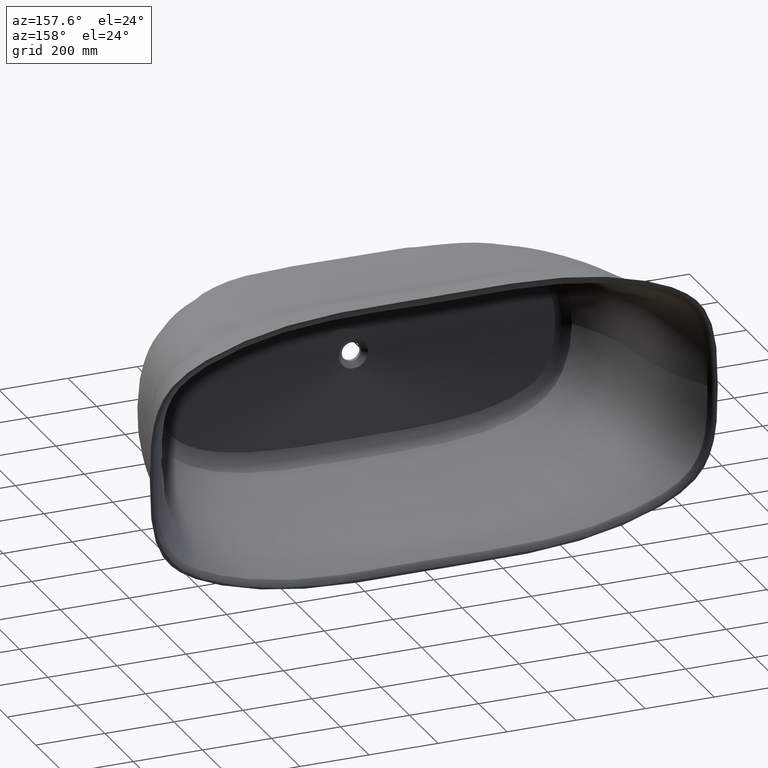
[diagram: clean part render]
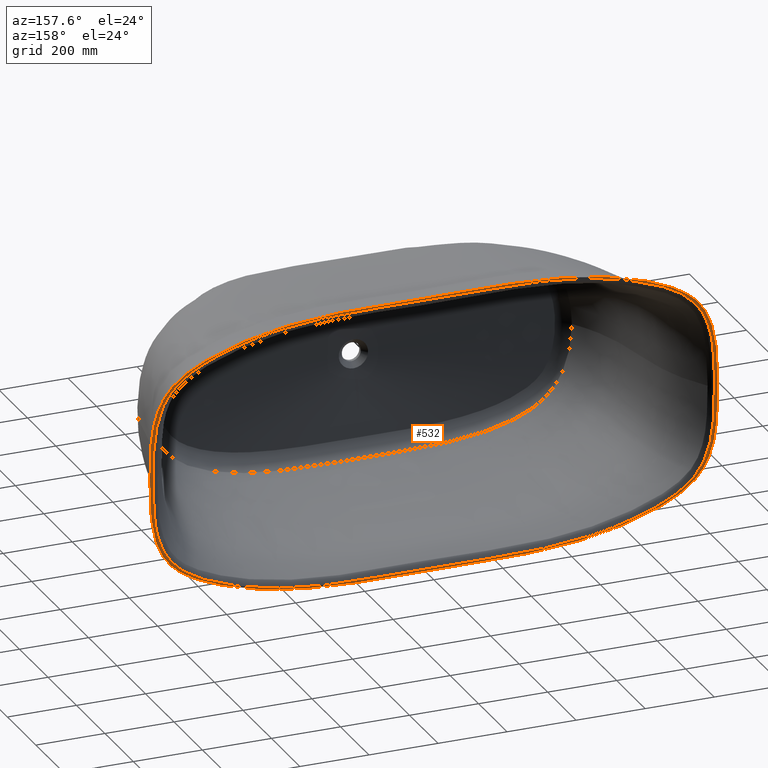
[diagram: same view with one face highlighted and labeled with its STEP entity id]
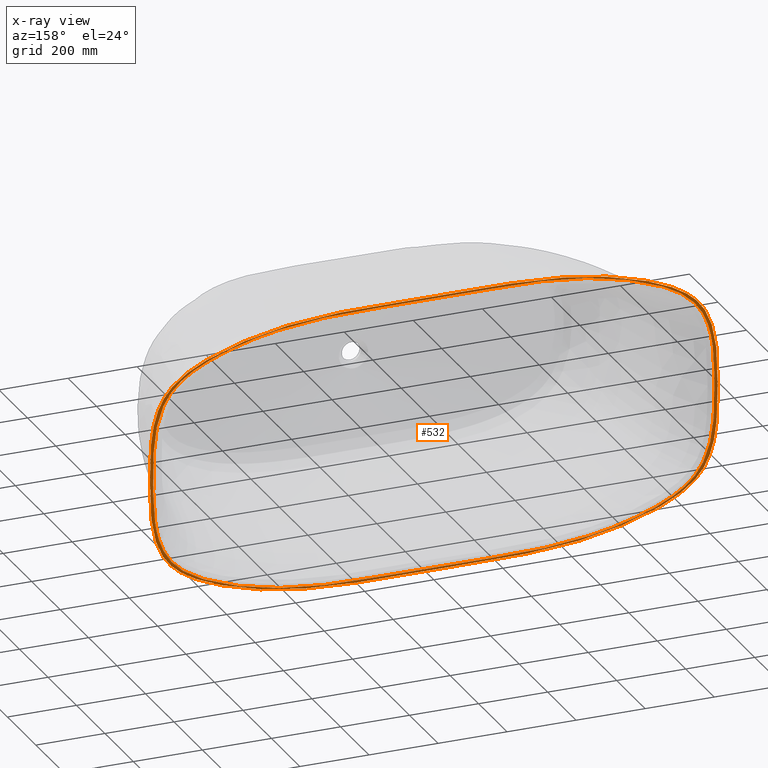
[diagram: x-ray of the same camera — body ghosted, the highlighted face saturated]
A machine part, auxiliary view. The second image highlights one B-rep face of the part: STEP entity #532.
The next image is the same camera in x-ray: the body ghosted, the highlighted face saturated — about 0% of this face is hidden behind the body in this view.
In plain terms, the highlighted planar face has unit normal (0, 1, 0).
Its self-contained STEP definition (entity closure, byte-faithful):
#33 = B_SPLINE_CURVE_WITH_KNOTS ( 'NONE', 3,
 ( #7620, #21201, #6647, #14610, #26328, #6404, #668, #9575, #6286, #14729, #11914, #3715, #26088, #23040, #25968, #14849, #29132, #17766, #20342, #12396, #12273, #34173, #34410, #25851, #9336, #23277, #17648, #31828, #17889, #15081, #902, #9096, #28888, #12152, #3597, #1018, #28650, #9216, #31709, #17413, #20222, #34530, #3477, #20578, #3835, #1260, #18347, #7109, #23636, #35002, #4418, #1603, #26899, #29475, #1377, #32180, #15429, #21045, #26556, #10151, #35112, #12513, #9808, #34891, #35226, #32406, #12736, #7223, #7340, #12625, #32065, #29709, #12853, #4080, #26782, #10035, #18236, #29361, #6997, #18124, #15315, #23755, #20935, #1491, #4307, #32291, #4536, #29591, #23981, #23868, #15655, #18461, #31949, #1718, #29248, #24098, #21279, #4194, #26667, #15200, #9921, #15541, #21160, #6882, #34772, #18010, #20817, #26443, #9694, #10756, #35582, #18939, #19062, #27137, #4891, #15774, #7816, #24579, #32645, #24457, #21754, #33008, #21515, #15893, #27379, #13332, #35465, #2319, #21877, #5137, #29949, #24705, #10388, #13211, #7696, #4771, #32884, #10510, #32525, #30192, #27019, #1837, #35707, #7942, #5012, #7579, #13455, #32762, #27259, #16011, #35344, #24336, #18699 ),
 .UNSPECIFIED., .F., .F.,
 ( 4, 2, 2, 2, 2, 1, 2, 2, 1, 1, 2, 2, 2, 2, 2, 2, 2, 2, 2, 2, 2, 2, 2, 2, 2, 2, 2, 2, 2, 2, 2, 2, 2, 2, 2, 2, 2, 2, 2, 2, 2, 2, 2, 2, 2, 2, 2, 2, 2, 2, 2, 2, 2, 2, 2, 2, 2, 2, 2, 2, 2, 2, 2, 2, 2, 2, 2, 2, 2, 2, 2, 2, 2, 2, 2, 2, 2, 4 ),
 ( 4.131862719628772496, 4.165148941386906500, 4.198435163145040505, 4.231721384903173622, 4.248364495782240624, 4.256686051221774569, 4.258766440081657834, 4.259286537296628872, 4.259806634511599022, 4.260846828941541098, 4.265007606661307626, 4.298293828419441631, 4.314936939298508634, 4.331580050177575636, 4.364866271935709641, 4.398152493693843645, 4.414795604572909760, 4.431438715451976762, 4.439760270891510707, 4.448081826331043764, 4.464724937210110767, 4.498011158968244771, 4.502171936688011300, 4.506332714407777829, 4.514654269847311774, 4.531297380726379664, 4.547940491605446667, 4.564583602484514557, 4.572905157924047614, 4.581226713363581560, 4.597869824242648562, 4.631156046000783455, 4.664442267758917460, 4.697728489517052353, 4.714371600396119355, 4.722693155835653300, 4.731014711275187246, 4.797587154791455255, 4.864159598307722376, 4.930732041823990386, 4.997304485340258395, 5.030590707098392400, 5.047233817977459402, 5.063876928856526405, 5.130449372372794414, 5.197021815889062424, 5.263594259405330433, 5.296880481163464438, 5.330166702921598443, 5.463311589954133574, 5.529884033470401583, 5.596456476986669593, 5.629742698744802709, 5.663028920502937602, 5.729601364019204723, 5.796173807535472733, 5.862746251051740742, 5.929318694568007864, 5.945961805447074866, 5.962604916326141868, 5.995891138084275873, 6.029177359842409878, 6.045820470721476880, 6.054142026161009937, 6.062463581600543883, 6.079106692479610885, 6.095749803358677887, 6.112392914237744890, 6.116553691957512306, 6.120714469677278835, 6.129036025116812780, 6.162322246874946785, 6.178965357754014676, 6.187286913193547733, 6.195608468633082566, 6.212251579512148680, 6.228894690391216571, 6.262180912149350576 ),
 .UNSPECIFIED. ) ;
#55 = CARTESIAN_POINT ( 'NONE',  ( 704.5333066432333453, -4.510281037539677620E-14, -295.5820174583107587 ) ) ;
#185 = CARTESIAN_POINT ( 'NONE',  ( -97.11899001629622319, 1.734723475976800152E-14, -393.7964773200726540 ) ) ;
#308 = CARTESIAN_POINT ( 'NONE',  ( 284.3326722549458054, 1.734723475976807094E-14, -393.4343006073427205 ) ) ;
#430 = CARTESIAN_POINT ( 'NONE',  ( -206.1036054563179505, -3.469446951953635094E-15, -394.8643273312954989 ) ) ;
#532 = ADVANCED_FACE ( 'NONE', ( #16271, #30267 ), #20277, .T. ) ;
#551 = CARTESIAN_POINT ( 'NONE',  ( -75.32229698651289596, -1.040834085586097352E-14, -393.4419337265324543 ) ) ;
#668 = CARTESIAN_POINT ( 'NONE',  ( 813.0263227763070972, -3.469446951953614978E-15, -37.60135462840131737 ) ) ;
#786 = CARTESIAN_POINT ( 'NONE',  ( 786.3215191866594296, -1.040834085586084257E-14, -204.8570801911702119 ) ) ;
#902 = CARTESIAN_POINT ( 'NONE',  ( 800.8616056122284590, 3.469446951953583423E-15, 160.3757720320687383 ) ) ;
#1018 = CARTESIAN_POINT ( 'NONE',  ( 794.0720827509887840, -2.081668171172176086E-14, 184.5157758839761470 ) ) ;
#1115 = CARTESIAN_POINT ( 'NONE',  ( -472.6615374648305874, 0.0000000000000000000, -416.4354768047816719 ) ) ;
#1260 = CARTESIAN_POINT ( 'NONE',  ( 763.8759578397223322, -8.673617379884031686E-14, 243.5912222281495758 ) ) ;
#1377 = CARTESIAN_POINT ( 'NONE',  ( 717.5189754631185224, -9.367506770274802486E-14, 286.8682579179133540 ) ) ;
#1491 = CARTESIAN_POINT ( 'NONE',  ( 257.7481288659871552, -3.469446951953613794E-15, 394.2012629864236715 ) ) ;
#1603 = CARTESIAN_POINT ( 'NONE',  ( 730.9516846075573540, -3.122502256758239517E-14, 276.9377636650827981 ) ) ;
#1708 = CARTESIAN_POINT ( 'NONE',  ( -808.3809421087109968, -3.469446951953614189E-15, 116.3137609976167255 ) ) ;
#1718 = CARTESIAN_POINT ( 'NONE',  ( -0.8167986451398893122, -2.081668171172170091E-14, 392.8187874382620066 ) ) ;
#1837 = CARTESIAN_POINT ( 'NONE',  ( -787.7410312072900069, -2.428612866367517626E-14, 201.6901008114629690 ) ) ;
#2000 = CARTESIAN_POINT ( 'NONE',  ( -813.0103416906774783, -1.040834085586084572E-14, 39.38379548845037448 ) ) ;
#2222 = CARTESIAN_POINT ( 'NONE',  ( 822.4999999999995453, 0.0000000000000000000, -0.0001044407391889712322 ) ) ;
#2240 = CARTESIAN_POINT ( 'NONE',  ( -759.0573139708067174, 2.711709361697344221E-28, -249.6450717633121315 ) ) ;
#2319 = CARTESIAN_POINT ( 'NONE',  ( -727.9228893703123049, 1.734723475976807094E-14, 279.3178047311914725 ) ) ;
#2363 = CARTESIAN_POINT ( 'NONE',  ( -628.5064128871536013, 8.088905766426362557E-30, -331.6272562558099821 ) ) ;
#2491 = CARTESIAN_POINT ( 'NONE',  ( -683.2941998657107661, -2.081668171172169775E-14, -307.5691385250500502 ) ) ;
#2615 = CARTESIAN_POINT ( 'NONE',  ( -802.5771845240814173, -3.469446951953588945E-15, -152.6358370140999625 ) ) ;
#2707 = CARTESIAN_POINT ( 'NONE',  ( 822.4999979598377422, 0.0000000000000000000, -94.08704083993697509 ) ) ;
#2742 = CARTESIAN_POINT ( 'NONE',  ( -716.1258080417372867, -3.469446951953556996E-15, -287.8150736248380213 ) ) ;
#2831 = CARTESIAN_POINT ( 'NONE',  ( -822.5000000000000000, 0.0000000000000000000, -1.387778780781445676E-14 ) ) ;
#2865 = CARTESIAN_POINT ( 'NONE',  ( 743.5693117142086521, -1.006139616066547989E-13, -265.9825832365580709 ) ) ;
#2993 = CARTESIAN_POINT ( 'NONE',  ( -293.2890553408309415, 2.081668171172073850E-14, -393.1167265608191883 ) ) ;
#3116 = CARTESIAN_POINT ( 'NONE',  ( 446.6172381381928744, -3.122502256758228157E-14, -378.9266039211541397 ) ) ;
#3240 = CARTESIAN_POINT ( 'NONE',  ( 718.1057224093806326, -4.510281037539659949E-14, -286.5074811533132220 ) ) ;
#3360 = CARTESIAN_POINT ( 'NONE',  ( 599.7040170386864020, 1.040834085586084414E-14, -341.8611812292600121 ) ) ;
#3477 = CARTESIAN_POINT ( 'NONE',  ( 768.7712168887862845, 1.249000902703300856E-13, 236.7756552920617708 ) ) ;
#3597 = CARTESIAN_POINT ( 'NONE',  ( 794.9285639737996689, 1.040834085586092145E-14, 181.8677137503069901 ) ) ;
#3715 = CARTESIAN_POINT ( 'NONE',  ( 813.2423784417784418, -1.040834085586083626E-14, -0.7206218648123553505 ) ) ;
#3835 = CARTESIAN_POINT ( 'NONE',  ( 765.5434446040119383, -7.285838599102591059E-14, 241.3564897156076086 ) ) ;
#3890 = DIRECTION ( 'NONE',  ( 0.0000000000000000000, 1.000000000000000000, 0.0000000000000000000 ) ) ;
#3958 = CARTESIAN_POINT ( 'NONE',  ( 789.0203226116954056, -1.040834085586104136E-14, -198.5609741853259038 ) ) ;
#4080 = CARTESIAN_POINT ( 'NONE',  ( 470.3828893415093262, 1.734723475976772385E-14, 374.9163901866781998 ) ) ;
#4194 = CARTESIAN_POINT ( 'NONE',  ( -187.8629086411699802, -2.081668171172195966E-14, 394.8641316068338369 ) ) ;
#4307 = CARTESIAN_POINT ( 'NONE',  ( 230.2410471269852223, -3.469446951953609850E-15, 394.7490853980604015 ) ) ;
#4418 = CARTESIAN_POINT ( 'NONE',  ( 735.2388207818021328, -9.367506770274774718E-14, 273.4343813465977746 ) ) ;
#4536 = CARTESIAN_POINT ( 'NONE',  ( 164.2243917709239724, 7.446929118297282071E-30, 394.7070977496678665 ) ) ;
#4771 = CARTESIAN_POINT ( 'NONE',  ( -760.5856261632682163, -4.163336342344504896E-14, 247.7599072502324873 ) ) ;
#4891 = CARTESIAN_POINT ( 'NONE',  ( -620.3939546470493269, -2.081668171172168829E-14, 334.6384179577488567 ) ) ;
#4918 = CARTESIAN_POINT ( 'NONE',  ( 822.5000000000050022, 0.0000000000000000000, -0.0001566611086449122634 ) ) ;
#5012 = CARTESIAN_POINT ( 'NONE',  ( -793.5388802893160118, -5.898059818321221114E-14, 186.1158990499558570 ) ) ;
#5057 = CARTESIAN_POINT ( 'NONE',  ( -550.5681683158035185, -3.816391647148935218E-14, -356.9716440214682507 ) ) ;
#5137 = CARTESIAN_POINT ( 'NONE',  ( -740.6057406746638208, 1.630640067418184532E-13, 268.7767901580057242 ) ) ;
#5182 = CARTESIAN_POINT ( 'NONE',  ( -673.5622552609206650, -1.353084311261913573E-13, -312.4449044986401418 ) ) ;
#5291 = CARTESIAN_POINT ( 'NONE',  ( -822.4999999999989768, 0.0000000000000000000, 0.0001566608466348541639 ) ) ;
#5310 = CARTESIAN_POINT ( 'NONE',  ( -760.8023511694908620, -1.214306433183768248E-13, -247.5186457551944557 ) ) ;
#5436 = CARTESIAN_POINT ( 'NONE',  ( -788.5862643943609100, 1.734723475976807094E-14, -200.2060742648859275 ) ) ;
#5561 = CARTESIAN_POINT ( 'NONE',  ( -714.9857056385100122, 2.081668171172162518E-14, -288.5915139699429233 ) ) ;
#5684 = CARTESIAN_POINT ( 'NONE',  ( 229.8416103402253725, -1.040834085586077472E-14, -394.7316221340425386 ) ) ;
#5810 = CARTESIAN_POINT ( 'NONE',  ( 635.6982353277243192, 3.469446951953280895E-15, -328.9263496269231268 ) ) ;
#5932 = CARTESIAN_POINT ( 'NONE',  ( 568.3964060136263470, -1.734723475976807094E-14, -351.6829597960085039 ) ) ;
#6051 = CARTESIAN_POINT ( 'NONE',  ( 741.5529563025248763, -4.108650548026102920E-30, -267.8422332905724375 ) ) ;
#6167 = CARTESIAN_POINT ( 'NONE',  ( 510.5046672738783400, 6.245004513516437382E-14, -366.8461471534646989 ) ) ;
#6286 = CARTESIAN_POINT ( 'NONE',  ( 813.2151149086766964, 3.469446951953612217E-15, -15.74899703883076185 ) ) ;
#6404 = CARTESIAN_POINT ( 'NONE',  ( 812.8251559209072639, 1.027162637006513644E-30, -48.52245232822493648 ) ) ;
#6525 = CARTESIAN_POINT ( 'NONE',  ( 768.8237100619614921, 4.059252933785774039E-13, -237.2996447142010084 ) ) ;
#6647 = CARTESIAN_POINT ( 'NONE',  ( 809.8760227352055381, 3.469446951953614189E-15, -103.0354615418772681 ) ) ;
#6764 = CARTESIAN_POINT ( 'NONE',  ( 796.3363702562802473, 1.040834085586099087E-14, -178.0519489377973912 ) ) ;
#6847 = EDGE_CURVE ( 'NONE', #13133, #28797, #27944, .T. ) ;
#6882 = CARTESIAN_POINT ( 'NONE',  ( -330.8584351643787045, 3.469446951953616555E-15, 391.1817471243554110 ) ) ;
#6997 = CARTESIAN_POINT ( 'NONE',  ( 307.2331581916283199, -3.469446951953779061E-15, 392.4999872410714374 ) ) ;
#7109 = CARTESIAN_POINT ( 'NONE',  ( 755.0984731500818725, -1.561251128379124870E-13, 254.3184006363744629 ) ) ;
#7223 = CARTESIAN_POINT ( 'NONE',  ( 587.5030791025826602, -1.249000902703307671E-13, 345.8297279898942520 ) ) ;
#7340 = CARTESIAN_POINT ( 'NONE',  ( 582.2319334797382453, -1.249000902703296817E-13, 347.4887848182227685 ) ) ;
#7579 = CARTESIAN_POINT ( 'NONE',  ( -794.4086407627886501, 2.081668171172243613E-14, 183.4851104050715094 ) ) ;
#7620 = CARTESIAN_POINT ( 'NONE',  ( 807.3045169104494789, 0.0000000000000000000, -124.7744286186710241 ) ) ;
#7696 = CARTESIAN_POINT ( 'NONE',  ( -759.7024465198971939, 1.353084311261926447E-13, 248.8410996885804138 ) ) ;
#7816 = CARTESIAN_POINT ( 'NONE',  ( -641.0388375261836700, 3.469446951953443400E-15, 326.8102646119650103 ) ) ;
#7827 = CARTESIAN_POINT ( 'NONE',  ( 822.5000000000050022, 0.0000000000000000000, -0.0001566611086449122634 ) ) ;
#7861 = CARTESIAN_POINT ( 'NONE',  ( -719.5290324600559870, 6.591949208711849288E-14, -285.4456856444546133 ) ) ;
#7942 = CARTESIAN_POINT ( 'NONE',  ( -791.7060570349776754, -5.898059818321178200E-14, 191.3606492049795236 ) ) ;
#7991 = CARTESIAN_POINT ( 'NONE',  ( -805.7138728481680801, -3.469446951953610639E-15, -136.4504031448961427 ) ) ;
#8120 = CARTESIAN_POINT ( 'NONE',  ( -813.1433979862467822, -1.040834085586084572E-14, 28.37615751512820950 ) ) ;
#8247 = CARTESIAN_POINT ( 'NONE',  ( -812.4933654179423002, 1.797534614761513433E-30, -59.67962164615952503 ) ) ;
#8337 = CARTESIAN_POINT ( 'NONE',  ( 472.6615374648301895, 0.0000000000000000000, -416.4354768047818425 ) ) ;
#8372 = CARTESIAN_POINT ( 'NONE',  ( -576.7480242222180777, -3.816391647148967404E-14, -349.1890746897391864 ) ) ;
#8498 = CARTESIAN_POINT ( 'NONE',  ( 746.5428944500380339, -1.006139616066567679E-13, -263.1211082948116200 ) ) ;
#8624 = CARTESIAN_POINT ( 'NONE',  ( 300.6809500751294308, 2.428612866367530563E-14, -392.7778578722300722 ) ) ;
#8746 = CARTESIAN_POINT ( 'NONE',  ( 665.8202428457283304, -4.510281037539698445E-14, -316.0271555639954499 ) ) ;
#8863 = CARTESIAN_POINT ( 'NONE',  ( -9.931472991607684264, 1.720497416985905659E-29, -392.8347613633812898 ) ) ;
#8980 = CARTESIAN_POINT ( 'NONE',  ( 0.9671373461681148642, -3.469446951953630360E-15, -392.8191532495967522 ) ) ;
#9096 = CARTESIAN_POINT ( 'NONE',  ( 799.5495308142030808, 1.734723475976810250E-14, 165.7763397749516798 ) ) ;
#9216 = CARTESIAN_POINT ( 'NONE',  ( 789.4098890201723862, -4.163336342344331978E-14, 197.5821819733708935 ) ) ;
#9255 = VERTEX_POINT ( 'NONE', #1708 ) ;
#9336 = CARTESIAN_POINT ( 'NONE',  ( 811.3536716569811915, 2.567906592516286737E-31, 83.79170504345380266 ) ) ;
#9432 = CARTESIAN_POINT ( 'NONE',  ( 1.431663625879322983E-13, 0.0000000000000000000, -387.1681131773278253 ) ) ;
#9455 = CARTESIAN_POINT ( 'NONE',  ( 750.4302080944883073, 4.510281037539642910E-14, -259.2158615566559092 ) ) ;
#9575 = CARTESIAN_POINT ( 'NONE',  ( 813.1858662771455784, -3.469446951953612611E-15, -21.21294062691074700 ) ) ;
#9694 = CARTESIAN_POINT ( 'NONE',  ( -493.7258233664360318, 1.734723475976803939E-14, 370.4265479964103633 ) ) ;
#9808 = CARTESIAN_POINT ( 'NONE',  ( 629.2270219123114430, -3.469446951953614189E-15, 331.4332756273407767 ) ) ;
#9921 = CARTESIAN_POINT ( 'NONE',  ( -286.8649540175575794, 3.816391647148974977E-14, 393.3656916926296958 ) ) ;
#10035 = CARTESIAN_POINT ( 'NONE',  ( 405.5317413874811336, -1.734723475976786900E-14, 384.5731114352756776 ) ) ;
#10151 = CARTESIAN_POINT ( 'NONE',  ( 679.5587742621705729, -3.122502256758284324E-14, 309.4673842426916508 ) ) ;
#10314 = CARTESIAN_POINT ( 'NONE',  ( -809.5826312682044090, -3.469446951953614189E-15, 105.3894730441505487 ) ) ;
#10388 = CARTESIAN_POINT ( 'NONE',  ( -757.0091463576386559, 1.734723475976807410E-14, 252.0299959011150861 ) ) ;
#10415 = CARTESIAN_POINT ( 'NONE',  ( -472.6615374648309853, 0.0000000000000000000, 416.4354768047817288 ) ) ;
#10510 = CARTESIAN_POINT ( 'NONE',  ( -764.8563505439551591, 3.920475055707625938E-13, 242.2854408068442638 ) ) ;
#10555 = CARTESIAN_POINT ( 'NONE',  ( -808.3809421087109968, -3.469446951953614189E-15, 116.3137609976167255 ) ) ;
#10677 = CARTESIAN_POINT ( 'NONE',  ( -702.2808290254098438, -3.018418848199637276E-13, -296.7744436315169310 ) ) ;
#10756 = CARTESIAN_POINT ( 'NONE',  ( -515.0927159629243306, 1.040834085586087570E-14, 365.8135030012070956 ) ) ;
#10804 = CARTESIAN_POINT ( 'NONE',  ( -597.6185515387120404, 1.734723475976812459E-14, -342.5562340926383627 ) ) ;
#10931 = CARTESIAN_POINT ( 'NONE',  ( -487.1363706956854003, 3.122502256758187137E-14, -371.7613439523948955 ) ) ;
#11059 = CARTESIAN_POINT ( 'NONE',  ( -529.4991936947490103, 3.122502256758236362E-14, -362.3872134776929670 ) ) ;
#11183 = CARTESIAN_POINT ( 'NONE',  ( -779.2820300310009998, 1.734723475976806148E-14, -220.0420720400599919 ) ) ;
#11311 = CARTESIAN_POINT ( 'NONE',  ( 749.4707428932709945, 1.040834085586090189E-13, -260.2011151758413803 ) ) ;
#11420 = CARTESIAN_POINT ( 'NONE',  ( 807.3045169104494789, 0.0000000000000000000, -124.7744286186710241 ) ) ;
#11437 = CARTESIAN_POINT ( 'NONE',  ( -140.7125147539177874, 1.734723475976819716E-14, -394.4205862636102893 ) ) ;
#11559 = CARTESIAN_POINT ( 'NONE',  ( 675.6764403295688908, 6.591949208711918708E-14, -311.2695933157824584 ) ) ;
#11676 = CARTESIAN_POINT ( 'NONE',  ( 278.8836580795224904, 1.734723475976807410E-14, -393.6204177603219705 ) ) ;
#11794 = CARTESIAN_POINT ( 'NONE',  ( -227.9010317110069934, -4.493836536903472318E-30, -394.7695701013885810 ) ) ;
#11839 = AXIS2_PLACEMENT_3D ( 'NONE', #28942, #3890, #17583 ) ;
#11914 = CARTESIAN_POINT ( 'NONE',  ( 813.2416687260587196, 3.469446951953614189E-15, -4.136422775092963633 ) ) ;
#12034 = CARTESIAN_POINT ( 'NONE',  ( 807.3045169104494789, 0.0000000000000000000, -124.7744286186710241 ) ) ;
#12152 = CARTESIAN_POINT ( 'NONE',  ( 796.5620466892330569, 1.040834085586082994E-14, 176.5351957502505797 ) ) ;
#12273 = CARTESIAN_POINT ( 'NONE',  ( 812.8615670825091684, 3.469446951953614189E-15, 45.03548707020670605 ) ) ;
#12312 = ORIENTED_EDGE ( 'NONE', *, *, #6847, .T. ) ;
#12396 = CARTESIAN_POINT ( 'NONE',  ( 813.1554658949149825, 3.469446951953620500E-15, 28.39441799255095233 ) ) ;
#12513 = CARTESIAN_POINT ( 'NONE',  ( 649.6447835888470763, -3.469446951953549897E-15, 323.2680275442340871 ) ) ;
#12625 = CARTESIAN_POINT ( 'NONE',  ( 579.5943096886369403, -3.122502256758297577E-14, 348.3051502445703136 ) ) ;
#12736 = CARTESIAN_POINT ( 'NONE',  ( 590.1376121404698551, 1.734723475976874621E-14, 344.9867193703314570 ) ) ;
#12853 = CARTESIAN_POINT ( 'NONE',  ( 491.8631946729106517, -4.163336342344321880E-14, 370.8198735167742370 ) ) ;
#12892 = CARTESIAN_POINT ( 'NONE',  ( -811.9912012528812966, 3.469446951953620500E-15, 72.40863483802512235 ) ) ;
#13113 = B_SPLINE_CURVE_WITH_KNOTS ( 'NONE', 3,
 ( #5291, #24362, #35611, #10415, #29975, #32788, #18844, #33036, #2222, #4918 ),
 .UNSPECIFIED., .F., .F.,
 ( 4, 1, 1, 1, 1, 1, 1, 4 ),
 ( 3.365254548353221972E-08, 0.06063285709478627439, 0.1021528900831438769, 0.2500000000000001110, 0.3978471099168562342, 0.4393671429052138366, 0.5000000000000000000, 0.5000000336526018163 ),
 .UNSPECIFIED. ) ;
#13133 = VERTEX_POINT ( 'NONE', #18160 ) ;
#13135 = CARTESIAN_POINT ( 'NONE',  ( -810.5467036317758129, -3.469446951953613794E-15, 94.42233073954652411 ) ) ;
#13211 = CARTESIAN_POINT ( 'NONE',  ( -757.9144566051917309, 1.353084311261909281E-13, 250.9757785211836278 ) ) ;
#13332 = CARTESIAN_POINT ( 'NONE',  ( -716.7487420142647352, 4.510281037539697814E-14, 287.4002600812743253 ) ) ;
#13455 = CARTESIAN_POINT ( 'NONE',  ( -796.8893114524036037, 2.081668171172168513E-14, 175.5695494374367343 ) ) ;
#13500 = CARTESIAN_POINT ( 'NONE',  ( -643.7441511933641323, -3.143117669239991333E-28, -325.7120859150111869 ) ) ;
#13599 = CARTESIAN_POINT ( 'NONE',  ( -822.4999999999989768, 0.0000000000000000000, 0.0001566608466348541639 ) ) ;
#13627 = CARTESIAN_POINT ( 'NONE',  ( -809.2045365009602165, -1.040834085586083783E-14, -109.1732703995585894 ) ) ;
#13755 = CARTESIAN_POINT ( 'NONE',  ( -810.6619075901662654, 3.469446951953605511E-15, -92.69560796644618961 ) ) ;
#13881 = CARTESIAN_POINT ( 'NONE',  ( -711.5524625714729154, 2.081668171172159678E-14, -290.8925606775115966 ) ) ;
#14005 = CARTESIAN_POINT ( 'NONE',  ( -613.1325676222884340, -3.469446951953572379E-15, -337.2449331524301783 ) ) ;
#14129 = CARTESIAN_POINT ( 'NONE',  ( -162.5093470182788451, -3.469446951953586184E-15, -394.6898105918959345 ) ) ;
#14251 = CARTESIAN_POINT ( 'NONE',  ( 55.46061212829613396, -3.469446951953528992E-15, -393.0003730324089588 ) ) ;
#14376 = CARTESIAN_POINT ( 'NONE',  ( -31.72854666127444290, -4.968899256518961442E-29, -392.9560589068345848 ) ) ;
#14491 = CARTESIAN_POINT ( 'NONE',  ( 186.2472704569239568, -1.040834085586079523E-14, -394.8562313715712548 ) ) ;
#14610 = CARTESIAN_POINT ( 'NONE',  ( 811.5200651321634950, 3.469446951953613794E-15, -81.25235758284027554 ) ) ;
#14729 = CARTESIAN_POINT ( 'NONE',  ( 813.2370800989058353, 3.469446951953614189E-15, -7.552039092588844760 ) ) ;
#14849 = CARTESIAN_POINT ( 'NONE',  ( 813.2422674150845978, 0.0000000000000000000, 1.175592516848960489 ) ) ;
#14962 = CARTESIAN_POINT ( 'NONE',  ( 785.7692030495429663, -1.734723475976807410E-14, -206.1128633646416688 ) ) ;
#15081 = CARTESIAN_POINT ( 'NONE',  ( 803.2147740914377891, 3.469446951953618133E-15, 149.5410564601082513 ) ) ;
#15200 = CARTESIAN_POINT ( 'NONE',  ( -253.8685333215150308, 3.816391647148948471E-14, 394.3971294542249098 ) ) ;
#15315 = CARTESIAN_POINT ( 'NONE',  ( 279.7550694812009624, -3.816391647148975608E-14, 393.5920703954669762 ) ) ;
#15429 = CARTESIAN_POINT ( 'NONE',  ( 708.2759050280606061, 1.040834085586084257E-13, 293.0589464209372181 ) ) ;
#15541 = CARTESIAN_POINT ( 'NONE',  ( -297.8630158137766557, 3.816391647148975608E-14, 392.9288600672626899 ) ) ;
#15655 = CARTESIAN_POINT ( 'NONE',  ( 43.19425021502685524, 1.040834085586084099E-14, 393.0645765334273847 ) ) ;
#15774 = CARTESIAN_POINT ( 'NONE',  ( -625.5772619077346235, 3.469446951953614189E-15, 332.7286016661581698 ) ) ;
#15893 = CARTESIAN_POINT ( 'NONE',  ( -709.8369248559953348, -1.249000902703300856E-13, 292.0092997470196678 ) ) ;
#15936 = CARTESIAN_POINT ( 'NONE',  ( -812.4334954969306182, -1.040834085586084572E-14, 61.40003647240587270 ) ) ;
#16011 = CARTESIAN_POINT ( 'NONE',  ( -802.2385195461248486, 1.979855982830217690E-28, 154.2330784500955190 ) ) ;
#16177 = CARTESIAN_POINT ( 'NONE',  ( -401.5660087359970021, 1.040834085586074001E-14, -385.0364972338787197 ) ) ;
#16271 = FACE_BOUND ( 'NONE', #22902, .T. ) ;
#16300 = CARTESIAN_POINT ( 'NONE',  ( -749.9167927118909347, -1.006139616066550639E-13, -259.8494340088336685 ) ) ;
#16428 = CARTESIAN_POINT ( 'NONE',  ( -709.2463928917633211, -3.018418848199644849E-13, -292.3889076658183512 ) ) ;
#16554 = CARTESIAN_POINT ( 'NONE',  ( -753.6837669279998408, 2.424103823335435089E-28, -255.8817704530006552 ) ) ;
#16683 = CARTESIAN_POINT ( 'NONE',  ( -797.3315153118727494, 2.619264724366669907E-29, -174.0323516921683336 ) ) ;
#16807 = CARTESIAN_POINT ( 'NONE',  ( 660.8489667031553836, 7.285838599102589797E-14, -318.2987768953820478 ) ) ;
#16935 = CARTESIAN_POINT ( 'NONE',  ( 327.8955614083430419, -4.510281037539697814E-14, -391.3656827471585302 ) ) ;
#17057 = CARTESIAN_POINT ( 'NONE',  ( -271.4970780929439798, 5.898059818321161791E-14, -393.8484821246660772 ) ) ;
#17177 = CARTESIAN_POINT ( 'NONE',  ( 683.0070644201540517, -3.143117669239249205E-28, -307.5438171091871595 ) ) ;
#17295 = CARTESIAN_POINT ( 'NONE',  ( 573.6307367627757685, -3.122502256758252770E-14, -350.1306523507122392 ) ) ;
#17413 = CARTESIAN_POINT ( 'NONE',  ( 777.8754087550155418, -1.734723475976812459E-14, 222.7029936511399342 ) ) ;
#17530 = CARTESIAN_POINT ( 'NONE',  ( 784.0594009112444382, -1.734723475976806779E-14, -209.8672891084619323 ) ) ;
#17583 = DIRECTION ( 'NONE',  ( 0.0000000000000000000, -0.0000000000000000000, 1.000000000000000000 ) ) ;
#17648 = CARTESIAN_POINT ( 'NONE',  ( 808.4359010652673305, -3.469446951953614978E-15, 116.8090971645489731 ) ) ;
#17766 = CARTESIAN_POINT ( 'NONE',  ( 813.2401425794039369, 0.0000000000000000000, 4.816417300958867109 ) ) ;
#17889 = CARTESIAN_POINT ( 'NONE',  ( 804.2558206831490679, -4.237045877651895755E-30, 144.1069027956849595 ) ) ;
#18010 = CARTESIAN_POINT ( 'NONE',  ( -385.6270474903009813, 1.040834085586082679E-14, 386.8008420193699521 ) ) ;
#18124 = CARTESIAN_POINT ( 'NONE',  ( 296.2510016472943448, -3.816391647148959830E-14, 392.9950882544042088 ) ) ;
#18160 = CARTESIAN_POINT ( 'NONE',  ( 822.5000000000050022, 0.0000000000000000000, -0.0001566611086449122634 ) ) ;
#18236 = CARTESIAN_POINT ( 'NONE',  ( 361.9868080567053426, -1.734723475976803623E-14, 389.0160188057135429 ) ) ;
#18347 = CARTESIAN_POINT ( 'NONE',  ( 758.7277580792160734, -8.673617379884053143E-14, 250.1475496723701326 ) ) ;
#18461 = CARTESIAN_POINT ( 'NONE',  ( 32.19149893887105662, -1.734723475976807094E-14, 392.9595826210837117 ) ) ;
#18699 = CARTESIAN_POINT ( 'NONE',  ( -808.3809421087109968, -3.469446951953614189E-15, 116.3137609976167255 ) ) ;
#18702 = VERTEX_POINT ( 'NONE', #11420 ) ;
#18844 = CARTESIAN_POINT ( 'NONE',  ( 819.4035536108184488, 0.0000000000000000000, 252.6025157858578609 ) ) ;
#18939 = CARTESIAN_POINT ( 'NONE',  ( -578.6114782522256519, -1.075528555105625700E-13, 348.8947850646267170 ) ) ;
#18984 = CARTESIAN_POINT ( 'NONE',  ( -607.9757666085843084, 1.734723475976801730E-14, -339.0471422850089880 ) ) ;
#19062 = CARTESIAN_POINT ( 'NONE',  ( -604.7579295074563106, -1.075528555105624311E-13, 340.1534211365978990 ) ) ;
#19106 = CARTESIAN_POINT ( 'NONE',  ( -763.3479521872010309, -1.214306433183760927E-13, -244.2548980884502612 ) ) ;
#19233 = CARTESIAN_POINT ( 'NONE',  ( -718.3970025827916288, -3.469446951953451683E-15, -286.2424989019810369 ) ) ;
#19363 = CARTESIAN_POINT ( 'NONE',  ( -813.1595692748925330, -3.469446951953616555E-15, -26.66001642676148720 ) ) ;
#19485 = CARTESIAN_POINT ( 'NONE',  ( -737.9749519563791864, 1.422473250300987623E-13, -271.0923215059447102 ) ) ;
#19609 = CARTESIAN_POINT ( 'NONE',  ( 731.1903524196709441, -1.283695372222825133E-13, -276.7436368330223218 ) ) ;
#19735 = CARTESIAN_POINT ( 'NONE',  ( 317.0200590765143147, 2.428612866367529932E-14, -391.9935144964593974 ) ) ;
#19861 = CARTESIAN_POINT ( 'NONE',  ( 425.1740269495022062, 3.469446951953616555E-15, -382.0560657874946742 ) ) ;
#19983 = CARTESIAN_POINT ( 'NONE',  ( 695.1197865235614017, -2.177584790453680117E-28, -301.1155700758241096 ) ) ;
#20105 = CARTESIAN_POINT ( 'NONE',  ( 584.0826073590883425, -3.122502256758233206E-14, -346.9238170841389888 ) ) ;
#20222 = CARTESIAN_POINT ( 'NONE',  ( 771.1039177973641472, -1.734723475976773016E-14, 233.2834312385097348 ) ) ;
#20225 = ORIENTED_EDGE ( 'NONE', *, *, #34852, .T. ) ;
#20277 = PLANE ( 'NONE',  #11839 ) ;
#20342 = CARTESIAN_POINT ( 'NONE',  ( 813.2219812325399744, -5.135813185032574349E-31, 17.29914174695210960 ) ) ;
#20439 = CARTESIAN_POINT ( 'NONE',  ( -822.4999999999994316, 0.0000000000000000000, 0.0001044405642410871853 ) ) ;
#20578 = CARTESIAN_POINT ( 'NONE',  ( 767.9725331572960840, -7.285838599102589797E-14, 237.9311946857487783 ) ) ;
#20697 = CARTESIAN_POINT ( 'NONE',  ( 803.9651888657649579, -0.0000000000000000000, -146.3723889368948790 ) ) ;
#20817 = CARTESIAN_POINT ( 'NONE',  ( -429.1054878132309227, 1.040834085586080943E-14, 381.5155771864166354 ) ) ;
#20935 = CARTESIAN_POINT ( 'NONE',  ( 263.2495503213010579, 2.081668171172168513E-14, 394.0713659903760231 ) ) ;
#21045 = CARTESIAN_POINT ( 'NONE',  ( 703.5769305458333065, 5.898059818321142859E-14, 295.9837134240633532 ) ) ;
#21160 = CARTESIAN_POINT ( 'NONE',  ( -319.8573926263273393, 3.816391647148975608E-14, 391.8371277683611424 ) ) ;
#21201 = CARTESIAN_POINT ( 'NONE',  ( 808.7861244745682825, 2.567906592516284547E-31, -113.9142655703781060 ) ) ;
#21279 = CARTESIAN_POINT ( 'NONE',  ( -165.8584797688416188, 1.734723475976807726E-14, 394.7009587365150765 ) ) ;
#21515 = CARTESIAN_POINT ( 'NONE',  ( -707.4951986834109903, -1.040834085586083626E-14, 293.5054848181862894 ) ) ;
#21754 = CARTESIAN_POINT ( 'NONE',  ( -695.6545438057555657, -3.816391647148962355E-14, 300.6695343612889815 ) ) ;
#21799 = CARTESIAN_POINT ( 'NONE',  ( -592.4164343980563672, -3.469446951953664281E-15, -344.2635817458668726 ) ) ;
#21877 = CARTESIAN_POINT ( 'NONE',  ( -736.4649270503537082, 1.734723475976945934E-14, 272.3911253298985002 ) ) ;
#21924 = CARTESIAN_POINT ( 'NONE',  ( -773.8501111953331701, 1.561251128379126637E-13, -229.5874135113679131 ) ) ;
#22052 = CARTESIAN_POINT ( 'NONE',  ( -811.2403941123151299, -3.469446951953622472E-15, -84.44198599920218840 ) ) ;
#22179 = CARTESIAN_POINT ( 'NONE',  ( -653.7874699022067944, -1.353084311261911301E-13, -321.5169005344938000 ) ) ;
#22270 = CARTESIAN_POINT ( 'NONE',  ( 819.4035069357348675, 0.0000000000000000000, -252.6025378394793961 ) ) ;
#22304 = CARTESIAN_POINT ( 'NONE',  ( -766.6480469450976898, 1.561251128379126385E-13, -239.8044731291207086 ) ) ;
#22394 = CARTESIAN_POINT ( 'NONE',  ( -822.4999999999989768, 0.0000000000000000000, 0.0001566608466348541639 ) ) ;
#22428 = CARTESIAN_POINT ( 'NONE',  ( 722.5382167688824211, -1.283695372222841036E-13, -283.3531298830282594 ) ) ;
#22551 = CARTESIAN_POINT ( 'NONE',  ( 382.0971398804911701, 3.469446951953727390E-15, -387.1554703707588487 ) ) ;
#22675 = CARTESIAN_POINT ( 'NONE',  ( -260.5979734661220846, 5.898059818321117615E-14, -394.1357612613339256 ) ) ;
#22794 = CARTESIAN_POINT ( 'NONE',  ( 735.4101757544879092, -1.214106236941593665E-27, -273.2887523057178782 ) ) ;
#22902 = EDGE_LOOP ( 'NONE', ( #20225, #23706 ) ) ;
#22918 = CARTESIAN_POINT ( 'NONE',  ( 620.3474109266654750, 3.469446951953614189E-15, -334.6566555602890958 ) ) ;
#23040 = CARTESIAN_POINT ( 'NONE',  ( 813.2423773347042015, -1.040834085586084414E-14, 0.3087257088384604553 ) ) ;
#23158 = CARTESIAN_POINT ( 'NONE',  ( 782.2866886777693480, -1.734723475976806463E-14, -213.5952669083117428 ) ) ;
#23277 = CARTESIAN_POINT ( 'NONE',  ( 810.5943589736751846, -3.469446951953620500E-15, 94.82393185026008098 ) ) ;
#23400 = CARTESIAN_POINT ( 'NONE',  ( 774.6834457031523016, -6.245004513516949826E-14, -228.1493185522159592 ) ) ;
#23519 = CARTESIAN_POINT ( 'NONE',  ( 790.9788730872061251, 1.040834085586103978E-14, -193.4691890909132326 ) ) ;
#23636 = CARTESIAN_POINT ( 'NONE',  ( 747.4867894378826350, -1.561251128379125123E-13, 262.3018263924544158 ) ) ;
#23706 = ORIENTED_EDGE ( 'NONE', *, *, #34767, .T. ) ;
#23755 = CARTESIAN_POINT ( 'NONE',  ( 274.2524044801486411, 2.081668171172168513E-14, 393.7667939317268520 ) ) ;
#23868 = CARTESIAN_POINT ( 'NONE',  ( 76.20248526435214842, 1.040834085586081101E-14, 393.4543162068389961 ) ) ;
#23981 = CARTESIAN_POINT ( 'NONE',  ( 98.20795027018159828, 3.469446951953648899E-15, 393.8137729176838207 ) ) ;
#24020 = CARTESIAN_POINT ( 'NONE',  ( -809.0262704359644204, 3.469446951953613400E-15, 110.8596396950727723 ) ) ;
#24098 = CARTESIAN_POINT ( 'NONE',  ( -99.84282581190595351, 1.734723475976833600E-14, 393.9158999866002091 ) ) ;
#24336 = CARTESIAN_POINT ( 'NONE',  ( -807.0891746237832649, -3.469446951953648110E-15, 127.2313920079683243 ) ) ;
#24362 = CARTESIAN_POINT ( 'NONE',  ( -822.4999979598409254, 0.0000000000000000000, 94.08704083976222421 ) ) ;
#24457 = CARTESIAN_POINT ( 'NONE',  ( -681.1675603013882210, -3.816391647148975608E-14, 308.6715943819426684 ) ) ;
#24579 = CARTESIAN_POINT ( 'NONE',  ( -651.2296163232931576, 3.816391647148992647E-14, 322.6146871266283256 ) ) ;
#24625 = CARTESIAN_POINT ( 'NONE',  ( -813.0380400987899066, 2.311115933264683024E-30, -37.66686374057022846 ) ) ;
#24705 = CARTESIAN_POINT ( 'NONE',  ( -752.4275974211142284, 1.734723475976945303E-14, 257.2373034552512649 ) ) ;
#24751 = CARTESIAN_POINT ( 'NONE',  ( -810.4464024461134386, -3.469446951953606300E-15, -95.44734861964043660 ) ) ;
#24877 = CARTESIAN_POINT ( 'NONE',  ( -697.5741997545984532, -2.081668171172233200E-14, -299.5606079092959249 ) ) ;
#25003 = CARTESIAN_POINT ( 'NONE',  ( -813.2310577305757988, -1.040834085586082363E-14, 11.86504815678695479 ) ) ;
#25104 = B_SPLINE_CURVE_WITH_KNOTS ( 'NONE', 3,
 ( #10555, #24020, #10314, #13135, #29630, #12892, #15936, #2000, #8120, #25003, #33054, #33441, #27423, #19363, #24625, #8247, #36127, #22052, #30747, #13755, #24751, #30369, #13627, #27678, #7991, #2615, #33312, #35751, #16683, #30239, #5436, #11183, #21924, #22304, #27803, #30496, #19106, #5310, #2240, #16554, #16300, #36250, #19485, #30623, #33183, #7861, #19233, #2742, #5561, #13881, #16428, #10677, #24877, #2491, #5182, #22179, #13500, #2363, #27548, #14005, #18984, #10804, #21799, #25126, #8372, #5057, #11059, #10931, #35871, #27926, #16177, #35998, #28533, #31118, #2993, #33816, #17057, #22675, #28177, #11794, #430, #14129, #11437, #185, #551, #34055, #14376, #8863, #8980, #14251, #33693, #31358, #14491, #5684, #28415, #11676, #308, #30996, #8624, #19735, #16935, #25376, #22551, #19861, #3116, #33935, #6167, #31239, #25616, #5932, #17295, #20105, #33565, #3360, #30873, #25736, #22918, #5810, #25499, #16807, #8746, #28298, #11559, #25250, #17177, #19983, #55, #3240, #22428, #19609, #22794, #6051, #2865, #8498, #28052, #11311, #9455, #26210, #34293, #6525, #23400, #34653, #23158, #17530, #29010, #14962, #786, #3958, #23519, #6764, #31591, #20697, #28768, #12034 ),
 .UNSPECIFIED., .F., .F.,
 ( 4, 2, 2, 2, 2, 2, 2, 2, 2, 2, 2, 2, 2, 2, 2, 2, 2, 2, 2, 2, 2, 2, 2, 2, 2, 2, 2, 2, 2, 2, 2, 2, 2, 2, 2, 2, 2, 2, 2, 2, 2, 2, 2, 2, 2, 2, 2, 2, 2, 2, 2, 2, 2, 2, 2, 2, 2, 2, 2, 2, 2, 2, 2, 2, 2, 2, 2, 2, 2, 2, 2, 2, 2, 2, 2, 2, 4 ),
 ( 2.003376452964056309, 2.020005251922374789, 2.036634050880693270, 2.069891648797330230, 2.103149246713967191, 2.119778045672285671, 2.136406844630604596, 2.169664442547241556, 2.202922040463878517, 2.211236439943037979, 2.219550839422196997, 2.236179638380515478, 2.269437236297152882, 2.286066035255471363, 2.302694834213789843, 2.335952432130427248, 2.369210030047064208, 2.373367229786643939, 2.377524429526223670, 2.385838829005382689, 2.402467627963700725, 2.419096426922018761, 2.435725225880336797, 2.439882425619916528, 2.444039625359496259, 2.452354024838655278, 2.468982823796973314, 2.502240421713609386, 2.535498019630245459, 2.552126818588563051, 2.568755617546881087, 2.585384416505199123, 2.602013215463516715, 2.668528411296788416, 2.735043607130060117, 2.801558802963331374, 2.868073998796603075, 2.901331596713238703, 2.917960395671556739, 2.934589194629874775, 3.001104390463146476, 3.067619586296418177, 3.134134782129690322, 3.167392380046325506, 3.200649977962961579, 3.333680369629505869, 3.400195565462777569, 3.466710761296049270, 3.483339560254367306, 3.499968359212685343, 3.533225957129321415, 3.599741152962593560, 3.666256348795866149, 3.732771544629138738, 3.766029142545774810, 3.782657941504092847, 3.799286740462410883, 3.815915539420728919, 3.832544338379046955, 3.865801936295683028, 3.882430735254001064, 3.890745134733159638, 3.899059534212318212, 3.932317132128953396, 3.948945931087270989, 3.965574730045588581, 3.973889129524748043, 3.978046329264326886, 3.982203529003906617, 3.998832327962224653, 4.032089925878862502, 4.040404325358021076, 4.044561525097600807, 4.048718724837180538, 4.065347523795498574, 4.098605121712136423, 4.131862719628772496 ),
 .UNSPECIFIED. ) ;
#25126 = CARTESIAN_POINT ( 'NONE',  ( -581.9761617750191363, -3.469446951953693469E-15, -347.5818049550757110 ) ) ;
#25250 = CARTESIAN_POINT ( 'NONE',  ( 680.5693716068270760, 6.591949208711895989E-14, -308.8035318513448715 ) ) ;
#25342 = CARTESIAN_POINT ( 'NONE',  ( -819.4035536108189035, 0.0000000000000000000, -252.6025157858576335 ) ) ;
#25376 = CARTESIAN_POINT ( 'NONE',  ( 360.4634650078450591, -4.510281037539709805E-14, -389.1254192222496044 ) ) ;
#25499 = CARTESIAN_POINT ( 'NONE',  ( 645.8368917067953134, 7.285838599102621351E-14, -324.8698077321101891 ) ) ;
#25616 = CARTESIAN_POINT ( 'NONE',  ( 552.6688748840546168, -1.734723475976807094E-14, -356.1904932688824488 ) ) ;
#25736 = CARTESIAN_POINT ( 'NONE',  ( 615.2066146735600114, 3.122502256758252770E-14, -336.5075535588277944 ) ) ;
#25851 = CARTESIAN_POINT ( 'NONE',  ( 812.1665810396069674, 3.851859888774489660E-31, 67.20295939458640078 ) ) ;
#25912 = ORIENTED_EDGE ( 'NONE', *, *, #32587, .T. ) ;
#25968 = CARTESIAN_POINT ( 'NONE',  ( 813.2423442518780803, -1.040834085586084414E-14, 0.6554725355117214658 ) ) ;
#26088 = CARTESIAN_POINT ( 'NONE',  ( 813.2423847741475811, -1.040834085586084257E-14, 0.1333365050397488649 ) ) ;
#26210 = CARTESIAN_POINT ( 'NONE',  ( 755.1634364416976268, 4.510281037539355764E-14, -254.2448272107492642 ) ) ;
#26328 = CARTESIAN_POINT ( 'NONE',  ( 812.0709962277006753, -9.629649721936186272E-31, -70.34790474751210354 ) ) ;
#26443 = CARTESIAN_POINT ( 'NONE',  ( -450.7322002137075287, 1.734723475976805517E-14, 378.2775370475220029 ) ) ;
#26556 = CARTESIAN_POINT ( 'NONE',  ( 689.3051930690971858, 5.898059818321142859E-14, 304.3771185016822756 ) ) ;
#26667 = CARTESIAN_POINT ( 'NONE',  ( -231.8679355540679126, -2.081668171172141061E-14, 394.7122340140668939 ) ) ;
#26782 = CARTESIAN_POINT ( 'NONE',  ( 427.2171662606360769, 1.734723475976799206E-14, 381.7930320054849176 ) ) ;
#26899 = CARTESIAN_POINT ( 'NONE',  ( 724.3180709532185801, -3.122502256758237624E-14, 281.9869613332004405 ) ) ;
#27019 = CARTESIAN_POINT ( 'NONE',  ( -785.5614591162145643, -3.816391647148989492E-14, 206.7466188457212297 ) ) ;
#27137 = CARTESIAN_POINT ( 'NONE',  ( -609.9780249389708615, -2.081668171172127808E-14, 338.3526123933679060 ) ) ;
#27259 = CARTESIAN_POINT ( 'NONE',  ( -801.0464385345865139, 2.081668171172148950E-14, 159.5933869054285879 ) ) ;
#27379 = CARTESIAN_POINT ( 'NONE',  ( -714.4626394504500695, -1.249000902703300856E-13, 288.9572911309065262 ) ) ;
#27423 = CARTESIAN_POINT ( 'NONE',  ( -813.2357387959526704, -3.469446951953627205E-15, -10.14941586873146662 ) ) ;
#27548 = CARTESIAN_POINT ( 'NONE',  ( -623.3981297235710599, -3.469446951953623261E-15, -333.5355124449078517 ) ) ;
#27678 = CARTESIAN_POINT ( 'NONE',  ( -807.3191636209078297, -1.040834085586085046E-14, -125.5758176309260392 ) ) ;
#27803 = CARTESIAN_POINT ( 'NONE',  ( -765.8342605170356592, 3.816391647148976239E-14, -240.9300828831094634 ) ) ;
#27926 = CARTESIAN_POINT ( 'NONE',  ( -423.0573305673400455, -7.979727989493368170E-14, -382.3574118271294537 ) ) ;
#27944 = B_SPLINE_CURVE_WITH_KNOTS ( 'NONE', 3,
 ( #7827, #2707, #22270, #8337, #9432, #1115, #25342, #28746, #2831, #31686, #20439, #22394 ),
 .UNSPECIFIED., .F., .F.,
 ( 4, 1, 1, 1, 1, 1, 3, 4 ),
 ( 0.5000000336526018163, 0.5606328570947862744, 0.6021528900831438769, 0.7500000000000000000, 0.8978471099168562342, 0.9393671429052138366, 1.000000000000000000, 1.000000033652545417 ),
 .UNSPECIFIED. ) ;
#28052 = CARTESIAN_POINT ( 'NONE',  ( 747.5267446579587158, 1.040834085586103820E-13, -262.1541148656895075 ) ) ;
#28177 = CARTESIAN_POINT ( 'NONE',  ( -255.1484564693712400, 2.804153999027639623E-28, -394.2577597144361903 ) ) ;
#28298 = CARTESIAN_POINT ( 'NONE',  ( 673.2195857947314153, -4.510281037539750195E-14, -312.4768403753533335 ) ) ;
#28415 = CARTESIAN_POINT ( 'NONE',  ( 251.6384033541168037, 1.734723475976819716E-14, -394.4383461571315479 ) ) ;
#28533 = CARTESIAN_POINT ( 'NONE',  ( -336.7573207309568488, -1.769417945496345256E-13, -390.9050098468100600 ) ) ;
#28650 = CARTESIAN_POINT ( 'NONE',  ( 791.3760135562506548, -2.081668171172173246E-14, 192.4019805134238936 ) ) ;
#28746 = CARTESIAN_POINT ( 'NONE',  ( -822.5000000000000000, 0.0000000000000000000, -94.08693639920754492 ) ) ;
#28768 = CARTESIAN_POINT ( 'NONE',  ( 805.8241834260501264, -0.0000000000000000000, -135.6252526801604290 ) ) ;
#28797 = VERTEX_POINT ( 'NONE', #13599 ) ;
#28888 = CARTESIAN_POINT ( 'NONE',  ( 797.3398980107284615, 1.734723475976808988E-14, 173.8472620610770605 ) ) ;
#28942 = CARTESIAN_POINT ( 'NONE',  ( 822.5000000000000000, 0.0000000000000000000, -2.775557561562891351E-14 ) ) ;
#29010 = CARTESIAN_POINT ( 'NONE',  ( 784.6384729227496564, -1.734723475976807094E-14, -208.6172834026205010 ) ) ;
#29132 = CARTESIAN_POINT ( 'NONE',  ( 813.2416764852841879, -0.0000000000000000000, 3.082696175987772236 ) ) ;
#29248 = CARTESIAN_POINT ( 'NONE',  ( -55.83073268684420043, -2.081668171172154945E-14, 393.0010687074303064 ) ) ;
#29361 = CARTESIAN_POINT ( 'NONE',  ( 340.1272896029105937, -3.469446951953695836E-15, 390.6787825918778481 ) ) ;
#29475 = CARTESIAN_POINT ( 'NONE',  ( 722.0729620701008571, -9.367506770274775980E-14, 283.6356272294048040 ) ) ;
#29591 = CARTESIAN_POINT ( 'NONE',  ( 142.2189034780176087, 3.469446951953592890E-15, 394.4403446225181256 ) ) ;
#29630 = CARTESIAN_POINT ( 'NONE',  ( -810.9547014374791161, 3.469446951953614189E-15, 88.92269098442832842 ) ) ;
#29709 = CARTESIAN_POINT ( 'NONE',  ( 534.5904295928197598, -4.163336342344345231E-14, 361.1290573901428615 ) ) ;
#29949 = CARTESIAN_POINT ( 'NONE',  ( -748.5867796225423945, 1.630640067418184532E-13, 261.1995356820536927 ) ) ;
#29975 = CARTESIAN_POINT ( 'NONE',  ( -4.444682729432267536E-13, 0.0000000000000000000, 387.1681131773278821 ) ) ;
#30192 = CARTESIAN_POINT ( 'NONE',  ( -778.4415281464483769, -3.816391647149585871E-14, 221.5981066956553605 ) ) ;
#30239 = CARTESIAN_POINT ( 'NONE',  ( -792.4577964334380340, -1.027162637006591416E-30, -189.9150435416508742 ) ) ;
#30267 = FACE_OUTER_BOUND ( 'NONE', #31986, .T. ) ;
#30369 = CARTESIAN_POINT ( 'NONE',  ( -809.7451394935936833, -3.469446951953623261E-15, -103.6905111653519782 ) ) ;
#30496 = CARTESIAN_POINT ( 'NONE',  ( -764.1846023187239325, 3.816391647148937742E-14, -243.1547429398972895 ) ) ;
#30623 = CARTESIAN_POINT ( 'NONE',  ( -729.5173658731706610, 1.422473250300981817E-13, -278.0763630557327701 ) ) ;
#30747 = CARTESIAN_POINT ( 'NONE',  ( -811.0588716456622933, 3.469446951953622077E-15, -87.19322843553004532 ) ) ;
#30873 = CARTESIAN_POINT ( 'NONE',  ( 604.8850809426454589, 3.122502256758252770E-14, -340.1102214635363339 ) ) ;
#30996 = CARTESIAN_POINT ( 'NONE',  ( 295.2306206235974742, 1.734723475976807410E-14, -393.0130553287259545 ) ) ;
#31118 = CARTESIAN_POINT ( 'NONE',  ( -304.1686768661678570, -1.769417945496333896E-13, -392.6451452472175561 ) ) ;
#31239 = CARTESIAN_POINT ( 'NONE',  ( 542.1511269082567424, 6.245004513516505540E-14, -358.9962773885316096 ) ) ;
#31358 = CARTESIAN_POINT ( 'NONE',  ( 164.4497236326735958, -2.081668171172165989E-14, -394.6875923044678984 ) ) ;
#31591 = CARTESIAN_POINT ( 'NONE',  ( 799.2204101337844122, -2.922222749700852515E-44, -167.5854982478799116 ) ) ;
#31686 = CARTESIAN_POINT ( 'NONE',  ( -822.5000000000000000, 0.0000000000000000000, 5.222028216911585676E-05 ) ) ;
#31709 = CARTESIAN_POINT ( 'NONE',  ( 782.9427041580150899, -4.163336342344338920E-14, 212.8623279357932745 ) ) ;
#31828 = CARTESIAN_POINT ( 'NONE',  ( 807.0363118427395648, 5.970382827600437450E-30, 127.7619806516966321 ) ) ;
#31949 = CARTESIAN_POINT ( 'NONE',  ( 10.18597486736962487, -1.734723475976805517E-14, 392.8352605940590934 ) ) ;
#31986 = EDGE_LOOP ( 'NONE', ( #12312, #25912 ) ) ;
#32065 = CARTESIAN_POINT ( 'NONE',  ( 555.8374161906070867, -3.122502256758254032E-14, 355.5351238134143728 ) ) ;
#32180 = CARTESIAN_POINT ( 'NONE',  ( 715.2202874919199758, 1.040834085586089179E-13, 288.4450214033250290 ) ) ;
#32291 = CARTESIAN_POINT ( 'NONE',  ( 208.2354635896189450, 2.051115390772417394E-29, 394.8614911805385645 ) ) ;
#32406 = CARTESIAN_POINT ( 'NONE',  ( 598.0225765888395699, 1.734723475976797628E-14, 342.4221942279936002 ) ) ;
#32525 = CARTESIAN_POINT ( 'NONE',  ( -772.9218631522155647, 3.920475055707583528E-13, 231.0760547179817479 ) ) ;
#32587 = EDGE_CURVE ( 'NONE', #28797, #13133, #13113, .T. ) ;
#32645 = CARTESIAN_POINT ( 'NONE',  ( -671.2937531788919614, 3.816391647148974977E-14, 313.5448719518212783 ) ) ;
#32762 = CARTESIAN_POINT ( 'NONE',  ( -798.3718012748159936, 2.081668171172168829E-14, 170.2616164091284077 ) ) ;
#32788 = CARTESIAN_POINT ( 'NONE',  ( 472.6615374648309853, 0.0000000000000000000, 416.4354768047815583 ) ) ;
#32884 = CARTESIAN_POINT ( 'NONE',  ( -763.1849756794157429, -4.163336342344756070E-14, 244.4954288348609168 ) ) ;
#33008 = CARTESIAN_POINT ( 'NONE',  ( -700.4292167835403689, -1.040834085586097352E-14, 297.8860390937861098 ) ) ;
#33036 = CARTESIAN_POINT ( 'NONE',  ( 822.5000010200736824, 0.0000000000000000000, 94.08688417883793420 ) ) ;
#33054 = CARTESIAN_POINT ( 'NONE',  ( -813.2413633066685179, 1.734723475976805201E-14, 6.361403779112433376 ) ) ;
#33183 = CARTESIAN_POINT ( 'NONE',  ( -725.1474981956340571, 6.591949208711866959E-14, -281.4230863060337242 ) ) ;
#33312 = CARTESIAN_POINT ( 'NONE',  ( -801.4095308354350209, 2.081668171172166304E-14, -158.0097978749568313 ) ) ;
#33441 = CARTESIAN_POINT ( 'NONE',  ( -813.2432576206065278, 1.734723475976808357E-14, -4.645826847836728390 ) ) ;
#33565 = CARTESIAN_POINT ( 'NONE',  ( 589.3035731430352371, 1.040834085586064851E-14, -345.2680060130587094 ) ) ;
#33693 = CARTESIAN_POINT ( 'NONE',  ( 99.05662265231541141, -2.081668171172171038E-14, -393.8994882257195513 ) ) ;
#33816 = CARTESIAN_POINT ( 'NONE',  ( -276.9478702264494814, 2.081668171172149265E-14, -393.6831570002785838 ) ) ;
#33935 = CARTESIAN_POINT ( 'NONE',  ( 489.2825499618114691, -3.122502256758252139E-14, -371.3215938402357779 ) ) ;
#34055 = CARTESIAN_POINT ( 'NONE',  ( -42.62701460803888409, -1.040834085586079523E-14, -393.0589204639487662 ) ) ;
#34173 = CARTESIAN_POINT ( 'NONE',  ( 812.7309424641930491, 1.040834085586084257E-14, 50.58341358535515297 ) ) ;
#34293 = CARTESIAN_POINT ( 'NONE',  ( 758.7429085213016151, 4.059252933785762932E-13, -250.1233522543349750 ) ) ;
#34410 = CARTESIAN_POINT ( 'NONE',  ( 812.3833443216407204, 1.040834085586084414E-14, 61.66666021939895614 ) ) ;
#34530 = CARTESIAN_POINT ( 'NONE',  ( 770.3365873016811065, 1.249000902703297574E-13, 234.4521931997973354 ) ) ;
#34653 = CARTESIAN_POINT ( 'NONE',  ( 781.0589742883329336, -6.245004513516505540E-14, -216.0485242091507416 ) ) ;
#34767 = EDGE_CURVE ( 'NONE', #9255, #18702, #25104, .T. ) ;
#34772 = CARTESIAN_POINT ( 'NONE',  ( -363.7753352073650035, 3.469446951953581846E-15, 388.8481494800702762 ) ) ;
#34852 = EDGE_CURVE ( 'NONE', #18702, #9255, #33, .T. ) ;
#34891 = CARTESIAN_POINT ( 'NONE',  ( 618.8927791684011481, -3.469446951953613794E-15, 335.2427531723442371 ) ) ;
#35002 = CARTESIAN_POINT ( 'NONE',  ( 743.5063933969258869, -9.367506770274770932E-14, 266.1164332055568025 ) ) ;
#35112 = CARTESIAN_POINT ( 'NONE',  ( 659.7290551021314968, -3.122502256758260343E-14, 318.9138967767552231 ) ) ;
#35226 = CARTESIAN_POINT ( 'NONE',  ( 603.2573416457124722, -3.469446951953515581E-15, 340.6648418202282755 ) ) ;
#35344 = CARTESIAN_POINT ( 'NONE',  ( -805.4438776843893493, 3.261241372495766088E-29, 138.0852637401917207 ) ) ;
#35465 = CARTESIAN_POINT ( 'NONE',  ( -723.5215960177837360, 4.510281037539699077E-14, 282.6300685989666022 ) ) ;
#35582 = CARTESIAN_POINT ( 'NONE',  ( -557.5357012198535358, 1.040834085586056173E-14, 355.0484567105383462 ) ) ;
#35611 = CARTESIAN_POINT ( 'NONE',  ( -819.4035069358131977, 0.0000000000000000000, 252.6025378394427037 ) ) ;
#35707 = CARTESIAN_POINT ( 'NONE',  ( -790.7475322214087328, -2.428612866367497116E-14, 193.9614767780871887 ) ) ;
#35751 = CARTESIAN_POINT ( 'NONE',  ( -798.7866395499642067, 2.081668171172166304E-14, -168.7078214598685690 ) ) ;
#35871 = CARTESIAN_POINT ( 'NONE',  ( -465.8425128190997384, -7.979727989493286129E-14, -375.7198434274169472 ) ) ;
#35998 = CARTESIAN_POINT ( 'NONE',  ( -358.4160071785228752, 1.040834085586175607E-14, -389.3103180185739802 ) ) ;
#36127 = CARTESIAN_POINT ( 'NONE',  ( -812.0713698554933444, -3.469446951953615767E-15, -70.68553580928600866 ) ) ;
#36250 = CARTESIAN_POINT ( 'NONE',  ( -742.0626100556738720, -1.006139616066553542E-13, -267.4549410948850436 ) ) ;